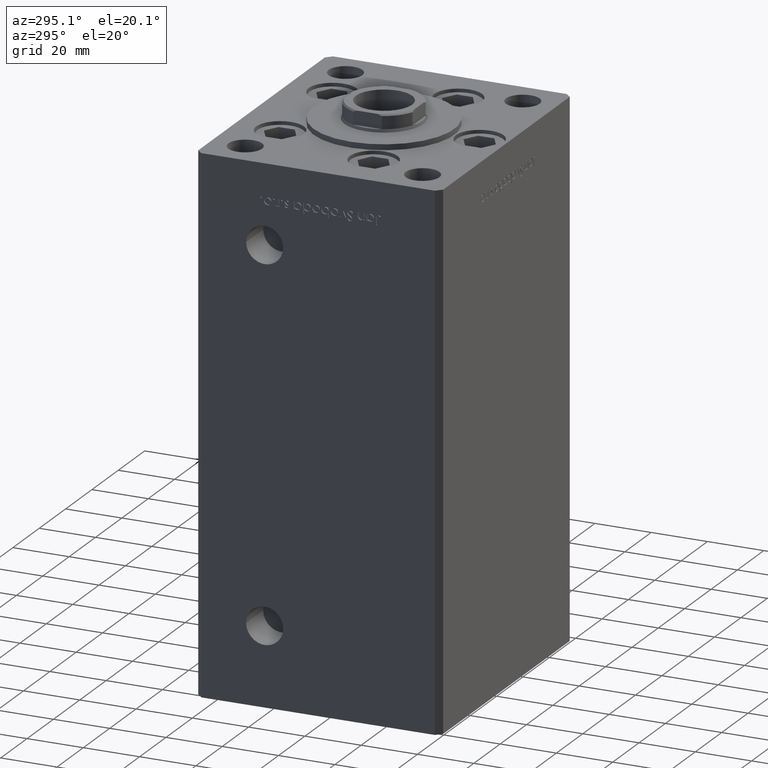
[diagram: clean part render]
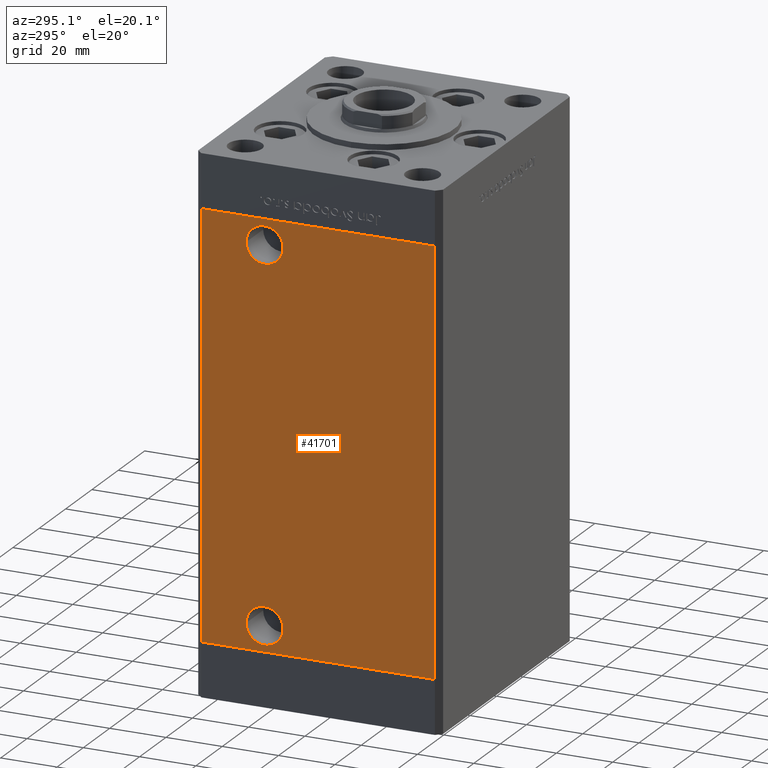
[diagram: same view with one face highlighted and labeled with its STEP entity id]
A machine part, auxiliary view. The second image highlights one B-rep face of the part: STEP entity #41701.
In plain terms, the highlighted planar face has unit normal (1, 0, 0).
Its self-contained STEP definition (entity closure, byte-faithful):
#331 = EDGE_LOOP ( 'NONE', ( #50306, #38059 ) ) ;
#944 = VECTOR ( 'NONE', #14359, 1000.000000000000000 ) ;
#1394 = EDGE_CURVE ( 'NONE', #44360, #32765, #48713, .T. ) ;
#1616 = CARTESIAN_POINT ( 'NONE',  ( -49.99999999999998579, -41.49999999999999289, 0.000000000000000000 ) ) ;
#1773 = AXIS2_PLACEMENT_3D ( 'NONE', #31192, #3375, #19373 ) ;
#2210 = CARTESIAN_POINT ( 'NONE',  ( -50.00000000000000711, 25.58000000000001606, 139.4999999999999716 ) ) ;
#2689 = VERTEX_POINT ( 'NONE', #1616 ) ;
#3375 = DIRECTION ( 'NONE',  ( -1.000000000000000000, -2.275047181608927644E-16, 0.000000000000000000 ) ) ;
#4494 = ORIENTED_EDGE ( 'NONE', *, *, #41330, .F. ) ;
#4564 = ORIENTED_EDGE ( 'NONE', *, *, #43590, .T. ) ;
#5165 = AXIS2_PLACEMENT_3D ( 'NONE', #25107, #29826, #48977 ) ;
#5363 = FACE_OUTER_BOUND ( 'NONE', #42892, .T. ) ;
#6434 = CIRCLE ( 'NONE', #49981, 6.580000000000002736 ) ;
#7206 = DIRECTION ( 'NONE',  ( -0.000000000000000000, -0.000000000000000000, -1.000000000000000000 ) ) ;
#8212 = EDGE_CURVE ( 'NONE', #42430, #50797, #18127, .T. ) ;
#8602 = ORIENTED_EDGE ( 'NONE', *, *, #21755, .T. ) ;
#11754 = CARTESIAN_POINT ( 'NONE',  ( -50.00000000000001421, 41.49999999999999289, 0.000000000000000000 ) ) ;
#13757 = DIRECTION ( 'NONE',  ( -3.344045254895050480E-16, 1.000000000000000000, 0.000000000000000000 ) ) ;
#13875 = CARTESIAN_POINT ( 'NONE',  ( -50.00000000000000711, 12.41999999999999638, 9.000000000000000000 ) ) ;
#14359 = DIRECTION ( 'NONE',  ( 3.344045254895050973E-16, -1.000000000000000000, 0.000000000000000000 ) ) ;
#14387 = DIRECTION ( 'NONE',  ( -0.000000000000000000, -0.000000000000000000, -1.000000000000000000 ) ) ;
#18021 = DIRECTION ( 'NONE',  ( -1.000000000000000000, -2.275047181608927644E-16, 0.000000000000000000 ) ) ;
#18127 = LINE ( 'NONE', #34134, #51431 ) ;
#18339 = CARTESIAN_POINT ( 'NONE',  ( -49.99999999999998579, -41.49999999999999289, 148.5000000000000000 ) ) ;
#18740 = CARTESIAN_POINT ( 'NONE',  ( -50.00000000000001421, 41.49999999999999289, 148.5000000000000000 ) ) ;
#19373 = DIRECTION ( 'NONE',  ( 0.000000000000000000, -1.000000000000000000, 0.000000000000000000 ) ) ;
#19974 = VERTEX_POINT ( 'NONE', #11754 ) ;
#20227 = LINE ( 'NONE', #36223, #944 ) ;
#20666 = EDGE_CURVE ( 'NONE', #39336, #39469, #43645, .T. ) ;
#21370 = PLANE ( 'NONE',  #24057 ) ;
#21635 = FACE_BOUND ( 'NONE', #40758, .T. ) ;
#21755 = EDGE_CURVE ( 'NONE', #19974, #2689, #20227, .T. ) ;
#23280 = AXIS2_PLACEMENT_3D ( 'NONE', #39140, #30492, #27323 ) ;
#24057 = AXIS2_PLACEMENT_3D ( 'NONE', #49696, #37376, #13757 ) ;
#24082 = CIRCLE ( 'NONE', #23280, 6.580000000000016058 ) ;
#25107 = CARTESIAN_POINT ( 'NONE',  ( -50.00000000000000711, 19.00000000000000000, 139.4999999999999716 ) ) ;
#26620 = VECTOR ( 'NONE', #7206, 1000.000000000000000 ) ;
#27323 = DIRECTION ( 'NONE',  ( 0.000000000000000000, -1.000000000000000000, 0.000000000000000000 ) ) ;
#28492 = CARTESIAN_POINT ( 'NONE',  ( -50.00000000000000711, 12.41999999999998394, 139.4999999999999716 ) ) ;
#29826 = DIRECTION ( 'NONE',  ( -1.000000000000000000, -2.275047181608927644E-16, 0.000000000000000000 ) ) ;
#30492 = DIRECTION ( 'NONE',  ( -1.000000000000000000, -2.275047181608927644E-16, 0.000000000000000000 ) ) ;
#31192 = CARTESIAN_POINT ( 'NONE',  ( -50.00000000000000711, 19.00000000000000000, 9.000000000000000000 ) ) ;
#32291 = ORIENTED_EDGE ( 'NONE', *, *, #20666, .F. ) ;
#32765 = VERTEX_POINT ( 'NONE', #2210 ) ;
#34134 = CARTESIAN_POINT ( 'NONE',  ( -50.00000000000001421, 41.49999999999999289, 148.5000000000000000 ) ) ;
#34599 = LINE ( 'NONE', #18339, #50861 ) ;
#36223 = CARTESIAN_POINT ( 'NONE',  ( -50.00000000000001421, 41.49999999999999289, 0.000000000000000000 ) ) ;
#36591 = FACE_BOUND ( 'NONE', #331, .T. ) ;
#37376 = DIRECTION ( 'NONE',  ( 1.000000000000000000, 3.344045254895050480E-16, -0.000000000000000000 ) ) ;
#38059 = ORIENTED_EDGE ( 'NONE', *, *, #48179, .F. ) ;
#39140 = CARTESIAN_POINT ( 'NONE',  ( -50.00000000000000711, 19.00000000000000000, 139.4999999999999716 ) ) ;
#39336 = VERTEX_POINT ( 'NONE', #13875 ) ;
#39469 = VERTEX_POINT ( 'NONE', #50020 ) ;
#40554 = EDGE_CURVE ( 'NONE', #39469, #39336, #6434, .T. ) ;
#40758 = EDGE_LOOP ( 'NONE', ( #32291, #44812 ) ) ;
#41330 = EDGE_CURVE ( 'NONE', #50797, #2689, #34599, .T. ) ;
#41701 = ADVANCED_FACE ( 'NONE', ( #21635, #36591, #5363 ), #21370, .F. ) ;
#42430 = VERTEX_POINT ( 'NONE', #46612 ) ;
#42892 = EDGE_LOOP ( 'NONE', ( #8602, #4494, #51733, #4564 ) ) ;
#43134 = LINE ( 'NONE', #18740, #26620 ) ;
#43590 = EDGE_CURVE ( 'NONE', #42430, #19974, #43134, .T. ) ;
#43645 = CIRCLE ( 'NONE', #1773, 6.580000000000002736 ) ;
#44360 = VERTEX_POINT ( 'NONE', #28492 ) ;
#44771 = CARTESIAN_POINT ( 'NONE',  ( -49.99999999999998579, -41.49999999999999289, 148.5000000000000000 ) ) ;
#44812 = ORIENTED_EDGE ( 'NONE', *, *, #40554, .F. ) ;
#46087 = DIRECTION ( 'NONE',  ( 0.000000000000000000, -1.000000000000000000, 0.000000000000000000 ) ) ;
#46612 = CARTESIAN_POINT ( 'NONE',  ( -50.00000000000001421, 41.49999999999999289, 148.5000000000000000 ) ) ;
#48179 = EDGE_CURVE ( 'NONE', #32765, #44360, #24082, .T. ) ;
#48630 = DIRECTION ( 'NONE',  ( 3.344045254895050973E-16, -1.000000000000000000, 0.000000000000000000 ) ) ;
#48713 = CIRCLE ( 'NONE', #5165, 6.580000000000016058 ) ;
#48977 = DIRECTION ( 'NONE',  ( 0.000000000000000000, -1.000000000000000000, 0.000000000000000000 ) ) ;
#49498 = CARTESIAN_POINT ( 'NONE',  ( -50.00000000000000711, 19.00000000000000000, 9.000000000000000000 ) ) ;
#49696 = CARTESIAN_POINT ( 'NONE',  ( -50.00000000000001421, 41.49999999999999289, 148.5000000000000000 ) ) ;
#49981 = AXIS2_PLACEMENT_3D ( 'NONE', #49498, #18021, #46087 ) ;
#50020 = CARTESIAN_POINT ( 'NONE',  ( -50.00000000000000711, 25.58000000000000540, 9.000000000000000000 ) ) ;
#50306 = ORIENTED_EDGE ( 'NONE', *, *, #1394, .F. ) ;
#50797 = VERTEX_POINT ( 'NONE', #44771 ) ;
#50861 = VECTOR ( 'NONE', #14387, 1000.000000000000000 ) ;
#51431 = VECTOR ( 'NONE', #48630, 1000.000000000000000 ) ;
#51733 = ORIENTED_EDGE ( 'NONE', *, *, #8212, .F. ) ;